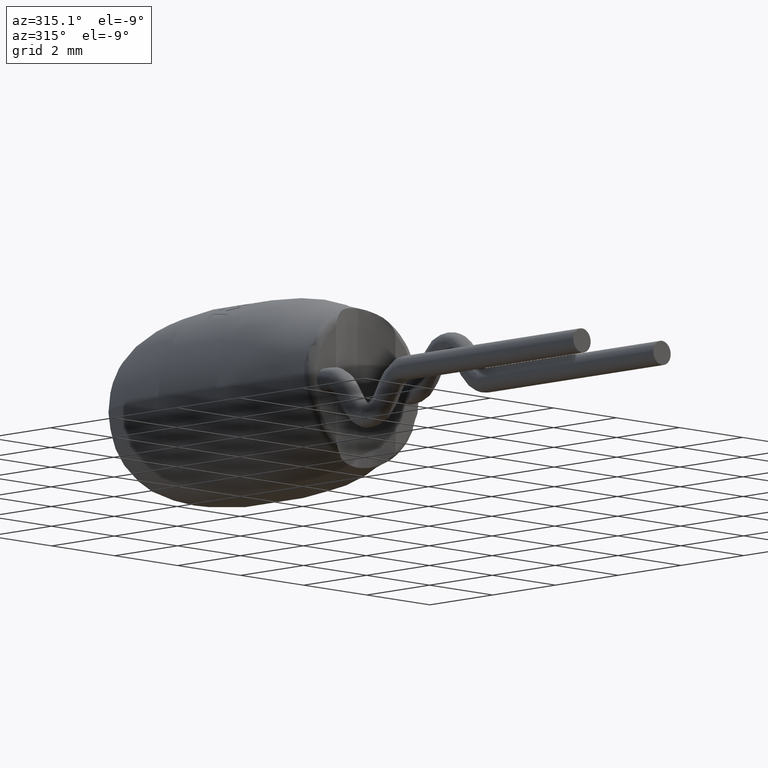
[diagram: clean part render]
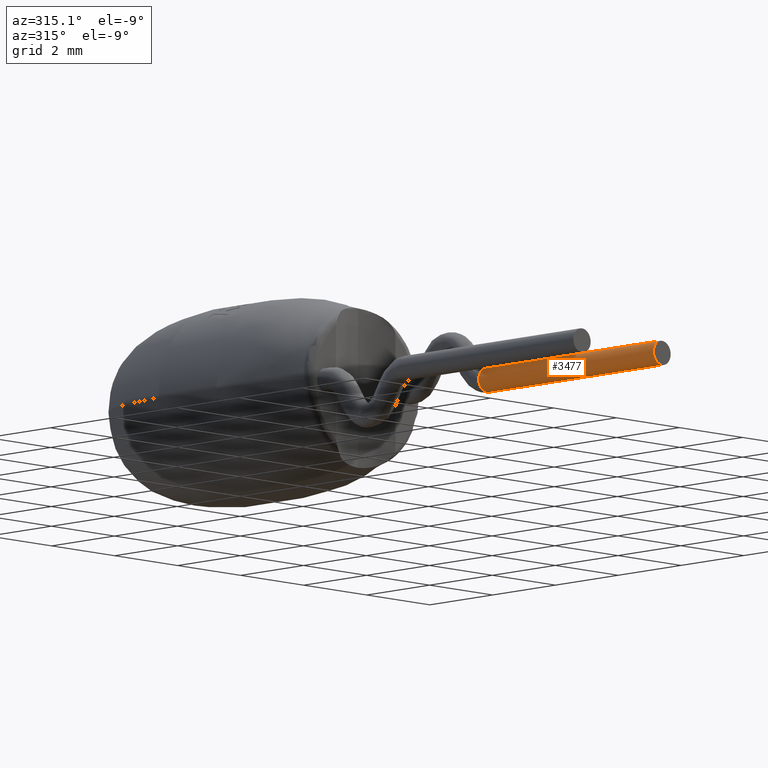
[diagram: same view with one face highlighted and labeled with its STEP entity id]
A machine part, auxiliary view. The second image highlights one B-rep face of the part: STEP entity #3477.
In plain terms, the highlighted face is a freeform B-spline surface patch.
Its self-contained STEP definition (entity closure, byte-faithful):
#215 = CARTESIAN_POINT ( 'NONE',  ( 0.7199999999999999700, -2.603505420312485900, 0.2749999999999973000 ) ) ;
#277 = CARTESIAN_POINT ( 'NONE',  ( 0.7199999999999999700, -8.160639999999999000, 0.2749999999999965800 ) ) ;
#330 = ORIENTED_EDGE ( 'NONE', *, *, #1879, .T. ) ;
#446 = EDGE_CURVE ( 'NONE', #3504, #3213, #2233, .T. ) ;
#521 = CARTESIAN_POINT ( 'NONE',  ( 1.819999999999999800, -2.603505420312486300, 0.2749999999999973000 ) ) ;
#579 = EDGE_CURVE ( 'NONE', #4284, #3504, #1528, .T. ) ;
#626 = CARTESIAN_POINT ( 'NONE',  ( 1.270000000000000000, -2.597774579687516500, -0.2750000000000029600 ) ) ;
#705 = CARTESIAN_POINT ( 'NONE',  ( 1.270000000000000000, -2.603505420312485900, 0.2749999999999971900 ) ) ;
#714 = CARTESIAN_POINT ( 'NONE',  ( 0.7199999999999999700, -2.603505420312486300, 0.2749999999999973000 ) ) ;
#822 = ORIENTED_EDGE ( 'NONE', *, *, #579, .T. ) ;
#834 = DIRECTION ( 'NONE',  ( 0.0000000000000000000, 0.0000000000000000000, 1.000000000000000000 ) ) ;
#1087 = ORIENTED_EDGE ( 'NONE', *, *, #2483, .F. ) ;
#1107 = CARTESIAN_POINT ( 'NONE',  ( 1.270000000000000000, -8.160640000000000800, 0.2749999999999964700 ) ) ;
#1207 = CARTESIAN_POINT ( 'NONE',  ( 1.270000000000000000, -2.597774579687516500, -0.2750000000000029600 ) ) ;
#1400 = CARTESIAN_POINT ( 'NONE',  ( 1.270000000000000000, -2.603505420312485900, 0.2749999999999971900 ) ) ;
#1467 = CARTESIAN_POINT ( 'NONE',  ( 1.270000000000000000, -2.597774579687516500, -0.2750000000000029600 ) ) ;
#1487 = CARTESIAN_POINT ( 'NONE',  ( 1.819999999999999800, -8.160639999999999000, -0.2750000000000035700 ) ) ;
#1528 =( BOUNDED_CURVE ( )  B_SPLINE_CURVE ( 3, ( #2242, #215, #3118, #626 ),
 .UNSPECIFIED., .F., .T. ) 
 B_SPLINE_CURVE_WITH_KNOTS ( ( 4, 4 ),
 ( 0.5000000000000000000, 1.000000000000000000 ),
 .UNSPECIFIED. ) 
 CURVE ( )  GEOMETRIC_REPRESENTATION_ITEM ( )  RATIONAL_B_SPLINE_CURVE ( ( 1.000000000000000200, 0.3333333333333334300, 0.3333333333333334300, 1.000000000000000200 ) ) 
 REPRESENTATION_ITEM ( '' )  );
#1879 = EDGE_CURVE ( 'NONE', #3213, #4383, #2372, .T. ) ;
#1936 = CARTESIAN_POINT ( 'NONE',  ( 1.270000000000000000, -8.160640000000000800, 0.2749999999999964700 ) ) ;
#2048 = DIRECTION ( 'NONE',  ( -0.0000000000000000000, 1.000000000000000000, -0.0000000000000000000 ) ) ;
#2226 = CARTESIAN_POINT ( 'NONE',  ( 1.270000000000000000, -2.597774579687516500, -0.2750000000000029600 ) ) ;
#2233 = B_SPLINE_CURVE_WITH_KNOTS ( 'NONE', 1,
 ( #1207, #4850 ),
 .UNSPECIFIED., .F., .F.,
 ( 2, 2 ),
 ( 0.0000000000000000000, 1.000000000000000000 ),
 .UNSPECIFIED. ) ;
#2242 = CARTESIAN_POINT ( 'NONE',  ( 1.270000000000000000, -2.603505420312485900, 0.2749999999999971900 ) ) ;
#2339 = CARTESIAN_POINT ( 'NONE',  ( 0.7199999999999999700, -8.160639999999999000, -0.2750000000000035700 ) ) ;
#2372 = CIRCLE ( 'NONE', #4296, 0.2750000000000000800 ) ;
#2408 = FACE_OUTER_BOUND ( 'NONE', #4193, .T. ) ;
#2471 = CARTESIAN_POINT ( 'NONE',  ( 1.270000000000000000, -8.160640000000000800, -3.577867169202164600E-015 ) ) ;
#2483 = EDGE_CURVE ( 'NONE', #4284, #4383, #4275, .T. ) ;
#2610 = CARTESIAN_POINT ( 'NONE',  ( 1.270000000000000000, -8.160640000000000800, -0.2750000000000036300 ) ) ;
#2630 = CARTESIAN_POINT ( 'NONE',  ( 1.819999999999999800, -8.160639999999999000, 0.2749999999999965800 ) ) ;
#2732 = CARTESIAN_POINT ( 'NONE',  ( 0.7199999999999999700, -2.597774579687516500, -0.2750000000000029100 ) ) ;
#3118 = CARTESIAN_POINT ( 'NONE',  ( 0.7199999999999999700, -2.597774579687516500, -0.2750000000000029100 ) ) ;
#3147 = CARTESIAN_POINT ( 'NONE',  ( 1.270000000000000000, -8.160640000000000800, -0.2750000000000036300 ) ) ;
#3213 = VERTEX_POINT ( 'NONE', #5175 ) ;
#3477 = ADVANCED_FACE ( 'NONE', ( #2408 ), #3584, .T. ) ;
#3504 = VERTEX_POINT ( 'NONE', #3565 ) ;
#3565 = CARTESIAN_POINT ( 'NONE',  ( 1.270000000000000000, -2.597774579687516500, -0.2750000000000029600 ) ) ;
#3584 =( BOUNDED_SURFACE ( )  B_SPLINE_SURFACE ( 3, 1, ( 
 ( #2226, #2610 ),
 ( #5107, #1487 ),
 ( #521, #2630 ),
 ( #1400, #1936 ),
 ( #714, #277 ),
 ( #2732, #2339 ),
 ( #1467, #3147 ) ),
 .UNSPECIFIED., .T., .F., .T. ) 
 B_SPLINE_SURFACE_WITH_KNOTS ( ( 4, 3, 4 ),
 ( 2, 2 ),
 ( 0.0000000000000000000, 0.5000000000000000000, 1.000000000000000000 ),
 ( 0.0000000000000000000, 1.000000000000000000 ),
 .UNSPECIFIED. ) 
 GEOMETRIC_REPRESENTATION_ITEM ( )  RATIONAL_B_SPLINE_SURFACE ( (
 ( 1.000000000000000200, 1.000000000000000200),
 ( 0.3333333333333334300, 0.3333333333333334300),
 ( 0.3333333333333334300, 0.3333333333333334300),
 ( 1.000000000000000200, 1.000000000000000200),
 ( 0.3333333333333334300, 0.3333333333333334300),
 ( 0.3333333333333334300, 0.3333333333333334300),
 ( 1.000000000000000200, 1.000000000000000200) ) ) 
 REPRESENTATION_ITEM ( '' )  SURFACE ( )  );
#3944 = CARTESIAN_POINT ( 'NONE',  ( 1.270000000000000000, -8.160640000000000800, 0.2749999999999964700 ) ) ;
#4193 = EDGE_LOOP ( 'NONE', ( #1087, #822, #4389, #330 ) ) ;
#4275 = B_SPLINE_CURVE_WITH_KNOTS ( 'NONE', 1,
 ( #4780, #1107 ),
 .UNSPECIFIED., .F., .F.,
 ( 2, 2 ),
 ( 0.0000000000000000000, 1.000000000000000000 ),
 .UNSPECIFIED. ) ;
#4284 = VERTEX_POINT ( 'NONE', #705 ) ;
#4296 = AXIS2_PLACEMENT_3D ( 'NONE', #2471, #2048, #834 ) ;
#4383 = VERTEX_POINT ( 'NONE', #3944 ) ;
#4389 = ORIENTED_EDGE ( 'NONE', *, *, #446, .T. ) ;
#4780 = CARTESIAN_POINT ( 'NONE',  ( 1.270000000000000000, -2.603505420312485900, 0.2749999999999971900 ) ) ;
#4850 = CARTESIAN_POINT ( 'NONE',  ( 1.270000000000000000, -8.160640000000000800, -0.2750000000000036300 ) ) ;
#5107 = CARTESIAN_POINT ( 'NONE',  ( 1.819999999999999800, -2.597774579687516500, -0.2750000000000029100 ) ) ;
#5175 = CARTESIAN_POINT ( 'NONE',  ( 1.270000000000000000, -8.160640000000000800, -0.2750000000000036300 ) ) ;